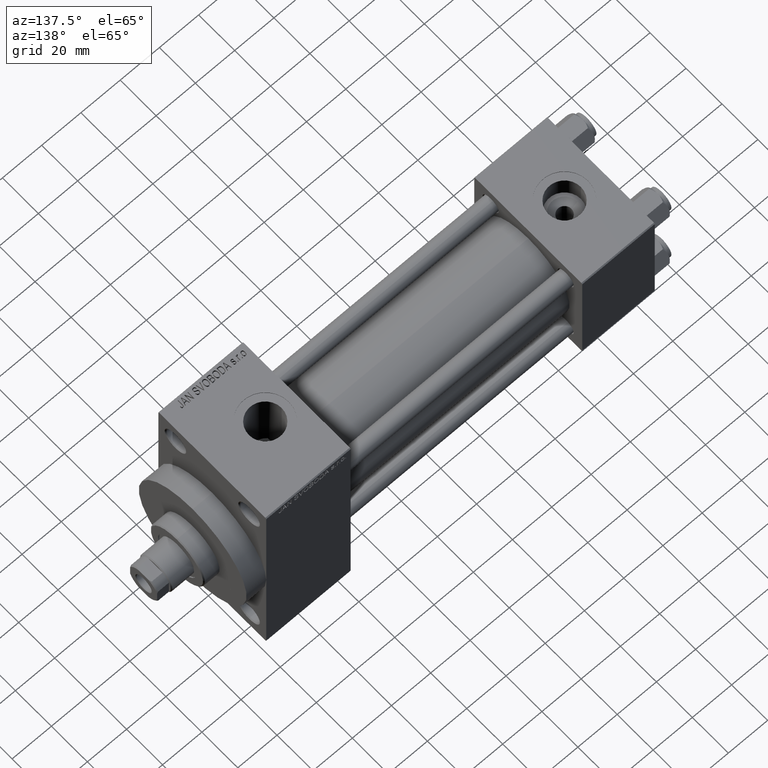
[diagram: clean part render]
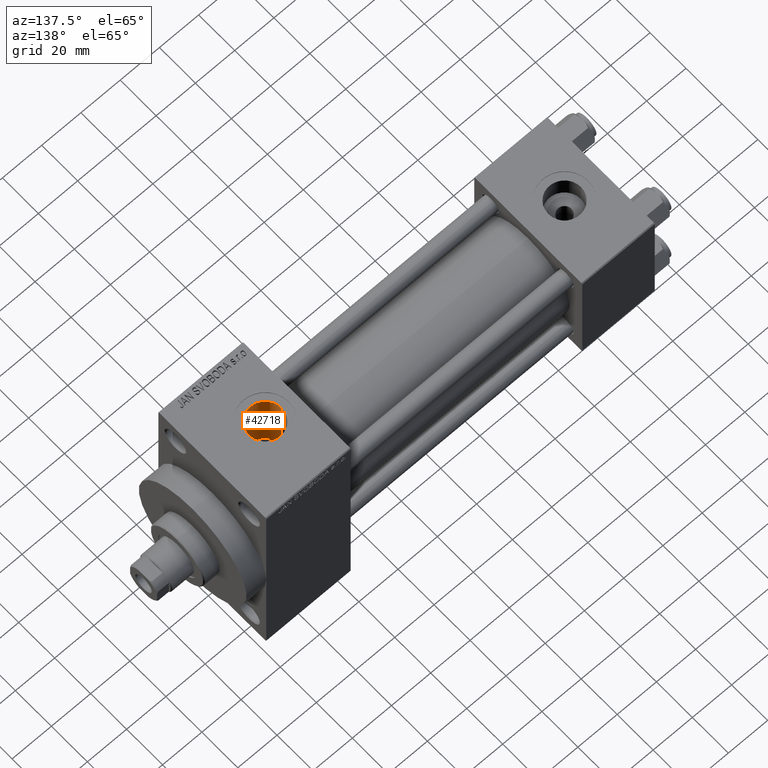
[diagram: same view with one face highlighted and labeled with its STEP entity id]
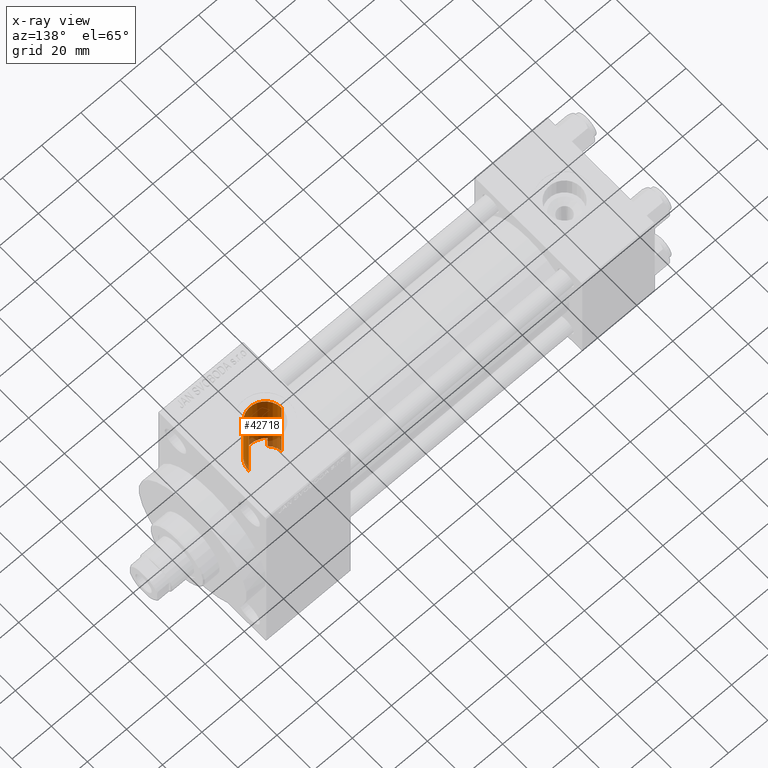
[diagram: x-ray of the same camera — body ghosted, the highlighted face saturated]
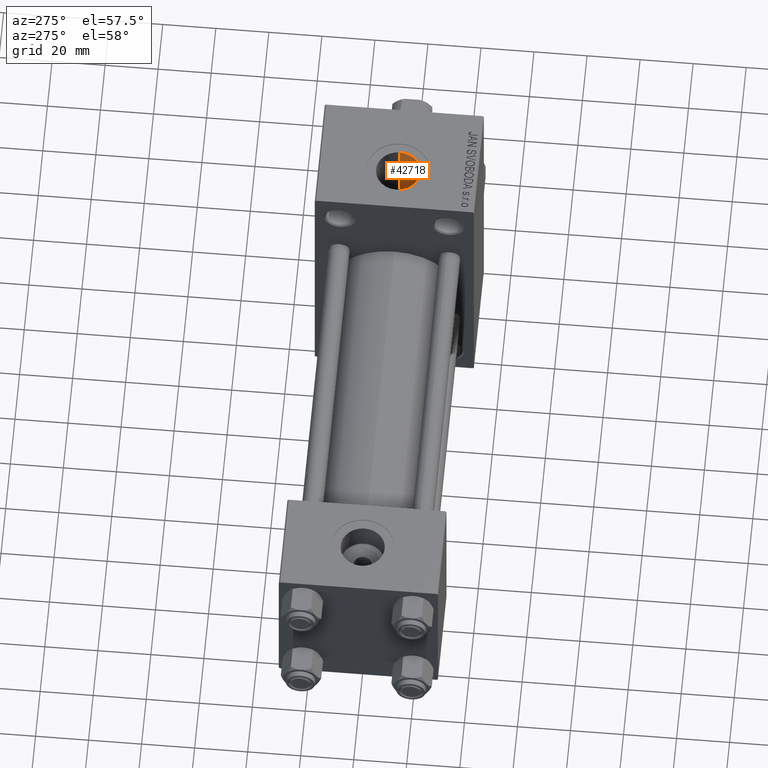
[diagram: same view with one face highlighted and labeled with its STEP entity id]
A machine part, auxiliary view. The second image highlights one B-rep face of the part: STEP entity #42718.
The next image is the same camera in x-ray: the body ghosted, the highlighted face saturated — about 10% of this face is hidden behind the body in this view.
A second angle (auxiliary view) of the same face is appended — the face is thin or edge-on in the first view.
In plain terms, the highlighted cylindrical surface (edge-blend (fillet) strip) has radius 8.33 mm, axis along (0, 0, -1).
Its self-contained STEP definition (entity closure, byte-faithful):
#407 = CARTESIAN_POINT ( 'NONE',  ( 169.3814412075936389, -8.182171164303339239, 20.95982457214781292 ) ) ;
#636 = CARTESIAN_POINT ( 'NONE',  ( 165.3158746668532331, -6.103616970294128308, 21.65812902678066720 ) ) ;
#677 = EDGE_CURVE ( 'NONE', #30303, #29091, #9025, .T. ) ;
#880 = CARTESIAN_POINT ( 'NONE',  ( 164.5787930821608995, -5.311940286469841510, 14.56268721714077508 ) ) ;
#1512 = DIRECTION ( 'NONE',  ( 1.000000000000000000, 0.000000000000000000, 0.000000000000000000 ) ) ;
#2572 = DIRECTION ( 'NONE',  ( -1.000000000000000000, 0.000000000000000000, 0.000000000000000000 ) ) ;
#3530 = CARTESIAN_POINT ( 'NONE',  ( 167.3830852825354896, -7.515492575748695003, 21.20842510955138138 ) ) ;
#3760 = CARTESIAN_POINT ( 'NONE',  ( 177.3413009043436546, -5.417501232309183123, 21.84028767977485685 ) ) ;
#3995 = CARTESIAN_POINT ( 'NONE',  ( 178.6639140372367649, -3.290714903397358615, 22.26132373405805964 ) ) ;
#4227 = CARTESIAN_POINT ( 'NONE',  ( 176.4597915280917846, -6.305104980880357424, 21.60018777995135153 ) ) ;
#4464 = CARTESIAN_POINT ( 'NONE',  ( 170.4273342078095936, -8.312974207010734418, 20.90801079915067007 ) ) ;
#4471 = CARTESIAN_POINT ( 'NONE',  ( 162.6699999999999875, -0.5084530117862658960, 15.50000000000000355 ) ) ;
#6057 = CARTESIAN_POINT ( 'NONE',  ( 170.9999999999999716, 6.302828629382400162E-15, 54.29999999999999716 ) ) ;
#6873 = DIRECTION ( 'NONE',  ( 0.000000000000000000, 0.000000000000000000, -1.000000000000000000 ) ) ;
#7094 = CARTESIAN_POINT ( 'NONE',  ( 170.9999999999999716, 6.302828629382400162E-15, 77.29999999999999716 ) ) ;
#7336 = CARTESIAN_POINT ( 'NONE',  ( 178.0799258618781948, -4.408873422199373948, 22.06660649451127298 ) ) ;
#7555 = CARTESIAN_POINT ( 'NONE',  ( 162.6699999999999875, 6.302828629382400162E-15, 54.29999999999999716 ) ) ;
#7570 = CARTESIAN_POINT ( 'NONE',  ( 179.2979863424998825, -0.8432915997222932836, 22.48808859033163543 ) ) ;
#7804 = CARTESIAN_POINT ( 'NONE',  ( 166.2981393575764457, -6.888851288155080965, 21.42070446004186834 ) ) ;
#8013 = EDGE_CURVE ( 'NONE', #30303, #20221, #28659, .T. ) ;
#8190 = ORIENTED_EDGE ( 'NONE', *, *, #677, .T. ) ;
#8255 = DIRECTION ( 'NONE',  ( -0.000000000000000000, -0.000000000000000000, 1.000000000000000000 ) ) ;
#8276 = CARTESIAN_POINT ( 'NONE',  ( 176.7709310325000160, -6.021442665975459185, 21.68155238348415281 ) ) ;
#8284 = CARTESIAN_POINT ( 'NONE',  ( 164.7400000000000375, -5.495570943951174847, 14.49305695841976593 ) ) ;
#8747 = CARTESIAN_POINT ( 'NONE',  ( 163.9948433974193449, -4.514179031432356659, 14.82972530592077121 ) ) ;
#8988 = CARTESIAN_POINT ( 'NONE',  ( 162.7161642970316393, -1.011996084777075922, 15.47504315940084041 ) ) ;
#9025 = LINE ( 'NONE', #19077, #11785 ) ;
#10649 = VERTEX_POINT ( 'NONE', #37492 ) ;
#11150 = CARTESIAN_POINT ( 'NONE',  ( 168.1560306839755299, -7.840697625789160519, 21.09036237300174577 ) ) ;
#11623 = CARTESIAN_POINT ( 'NONE',  ( 170.6388607599010072, -8.324890737869418800, 20.90325837862613412 ) ) ;
#11785 = VECTOR ( 'NONE', #33637, 1000.000000000000000 ) ;
#11859 = CARTESIAN_POINT ( 'NONE',  ( 171.0645977083229923, -8.332469890991669459, 20.90023832775083079 ) ) ;
#14520 = CARTESIAN_POINT ( 'NONE',  ( 171.2794540716098197, -8.328024065339549864, 20.90201419577501341 ) ) ;
#15207 = CARTESIAN_POINT ( 'NONE',  ( 164.7400000000000375, -5.495570943951174847, 21.81854028114620903 ) ) ;
#15361 = ORIENTED_EDGE ( 'NONE', *, *, #42027, .F. ) ;
#18107 = LINE ( 'NONE', #21918, #20370 ) ;
#18561 = CARTESIAN_POINT ( 'NONE',  ( 169.7966742200956674, -8.253438808842114227, 20.93161653585326576 ) ) ;
#18563 = CARTESIAN_POINT ( 'NONE',  ( 179.3299999999999841, 2.755455287773006291E-15, 22.50000000000000355 ) ) ;
#19027 = CARTESIAN_POINT ( 'NONE',  ( 167.0116854358693104, -7.325101535721560531, 21.27547271216653613 ) ) ;
#19077 = CARTESIAN_POINT ( 'NONE',  ( 179.3299999999999841, 7.322959413072145713E-15, 77.29999999999999716 ) ) ;
#19262 = CARTESIAN_POINT ( 'NONE',  ( 163.0493583877046717, -2.498106590616163025, 15.29935880154671501 ) ) ;
#19611 = B_SPLINE_CURVE_WITH_KNOTS ( 'NONE', 3,
 ( #8284, #880, #41458, #27127, #8747, #23318, #45269, #38118, #19262, #34532, #41698, #8988, #4471, #44575 ),
 .UNSPECIFIED., .F., .F.,
 ( 4, 2, 2, 2, 2, 2, 4 ),
 ( 0.02049932184141858502, 0.02125918471438761892, 0.02201904758735664935, 0.02353877333329467553, 0.02429863620626368861, 0.02505849907923270170, 0.02657822482517072440 ),
 .UNSPECIFIED. ) ;
#20209 = CARTESIAN_POINT ( 'NONE',  ( 164.7400000000000375, -5.495570943951174847, 14.49305695841976593 ) ) ;
#20221 = VERTEX_POINT ( 'NONE', #7555 ) ;
#20370 = VECTOR ( 'NONE', #43414, 1000.000000000000000 ) ;
#20918 = CARTESIAN_POINT ( 'NONE',  ( 179.3299999999999841, 7.322959413072145713E-15, 54.29999999999999716 ) ) ;
#21912 = CARTESIAN_POINT ( 'NONE',  ( 172.3403738839047321, -8.265299052519040401, 20.92696222447262144 ) ) ;
#21918 = CARTESIAN_POINT ( 'NONE',  ( 162.6699999999999875, 6.302828629382400162E-15, 77.29999999999999716 ) ) ;
#22148 = CARTESIAN_POINT ( 'NONE',  ( 178.8195974207913252, -2.901808889280236947, 22.31576175661179917 ) ) ;
#22379 = CARTESIAN_POINT ( 'NONE',  ( 179.3299999999999841, 2.755455287773006291E-15, 22.50000000000000355 ) ) ;
#22614 = CARTESIAN_POINT ( 'NONE',  ( 177.6031555897929763, -5.095277354536513315, 21.91828998158685593 ) ) ;
#23318 = CARTESIAN_POINT ( 'NONE',  ( 163.6117315744683935, -3.879035329860526016, 15.01323898488448272 ) ) ;
#23721 = DIRECTION ( 'NONE',  ( -0.000000000000000000, -0.000000000000000000, -1.000000000000000000 ) ) ;
#23955 = CARTESIAN_POINT ( 'NONE',  ( 164.7400000000000375, -5.495570943951174847, 21.81854028114620903 ) ) ;
#25360 = ORIENTED_EDGE ( 'NONE', *, *, #47169, .T. ) ;
#25965 = CARTESIAN_POINT ( 'NONE',  ( 179.1699291769579361, -1.679278209817677281, 22.44115179447787156 ) ) ;
#27127 = CARTESIAN_POINT ( 'NONE',  ( 164.1330257393911722, -4.721723193058623202, 14.76480843021959011 ) ) ;
#28121 = FACE_OUTER_BOUND ( 'NONE', #31838, .T. ) ;
#28659 = CIRCLE ( 'NONE', #33995, 8.330000000000003624 ) ;
#29072 = CARTESIAN_POINT ( 'NONE',  ( 165.0173696454154708, -5.811522461638612747, 21.73895961452385706 ) ) ;
#29091 = VERTEX_POINT ( 'NONE', #18563 ) ;
#30303 = VERTEX_POINT ( 'NONE', #20918 ) ;
#30445 = CARTESIAN_POINT ( 'NONE',  ( 164.7400000000000375, -5.495570943951174847, 77.29999999999999716 ) ) ;
#31838 = EDGE_LOOP ( 'NONE', ( #36772, #8190, #36696, #15361, #25360, #37769 ) ) ;
#32656 = CARTESIAN_POINT ( 'NONE',  ( 165.9550632640747949, -6.641689111475780116, 21.49922460944220859 ) ) ;
#32998 = B_SPLINE_CURVE_WITH_KNOTS ( 'NONE', 3,
 ( #22379, #40994, #7570, #25965, #44338, #22148, #3995, #40758, #7336, #22614, #3760, #8276, #4227, #43872, #44104, #40528, #21912, #14520, #11859, #11623, #4464, #18561, #407, #33119, #11150, #3530, #19027, #7804, #32656, #636, #29072, #15207 ),
 .UNSPECIFIED., .F., .F.,
 ( 4, 2, 2, 2, 2, 2, 2, 2, 2, 2, 2, 2, 2, 2, 2, 4 ),
 ( 0.02026158208243473632, 0.02152696880141128852, 0.02279235552038783724, 0.02405774223936438944, 0.02532312895834094163, 0.02658851567731749382, 0.02785390239629404602, 0.03038467583424714694, 0.03291544927220024785, 0.03354814263168850313, 0.03418083599117675841, 0.03544622271015318571, 0.03671160942912961300, 0.03797699614810604030, 0.03924238286708246759, 0.04050776958605888795 ),
 .UNSPECIFIED. ) ;
#33119 = CARTESIAN_POINT ( 'NONE',  ( 168.5613052431537824, -7.976241308370991767, 21.03905286955201248 ) ) ;
#33637 = DIRECTION ( 'NONE',  ( 0.000000000000000000, 0.000000000000000000, -1.000000000000000000 ) ) ;
#33795 = LINE ( 'NONE', #30445, #40027 ) ;
#33995 = AXIS2_PLACEMENT_3D ( 'NONE', #6057, #23721, #1512 ) ;
#34532 = CARTESIAN_POINT ( 'NONE',  ( 162.9120937043485640, -2.009728921522592859, 15.37113873265544051 ) ) ;
#35772 = CYLINDRICAL_SURFACE ( 'NONE', #36217, 8.330000000000003624 ) ;
#36217 = AXIS2_PLACEMENT_3D ( 'NONE', #7094, #6873, #2572 ) ;
#36696 = ORIENTED_EDGE ( 'NONE', *, *, #43543, .T. ) ;
#36772 = ORIENTED_EDGE ( 'NONE', *, *, #8013, .F. ) ;
#37492 = CARTESIAN_POINT ( 'NONE',  ( 162.6699999999999875, 1.898202536900960226E-15, 15.50000000000000000 ) ) ;
#37769 = ORIENTED_EDGE ( 'NONE', *, *, #47108, .F. ) ;
#38118 = CARTESIAN_POINT ( 'NONE',  ( 163.1283513953167414, -2.736452263294513632, 15.25837881643904126 ) ) ;
#40027 = VECTOR ( 'NONE', #8255, 1000.000000000000000 ) ;
#40528 = CARTESIAN_POINT ( 'NONE',  ( 173.1626272159216455, -8.088971939222103558, 20.99812971082580049 ) ) ;
#40758 = CARTESIAN_POINT ( 'NONE',  ( 178.2951098973457817, -4.042988316980862251, 22.13706359110742738 ) ) ;
#40994 = CARTESIAN_POINT ( 'NONE',  ( 179.3300000000000125, -0.4228661663087250333, 22.50000000000001066 ) ) ;
#41458 = CARTESIAN_POINT ( 'NONE',  ( 164.4250998660804726, -5.120614576075444901, 14.63125231332693410 ) ) ;
#41698 = CARTESIAN_POINT ( 'NONE',  ( 162.8541189623221044, -1.760060972621121156, 15.40178429883650324 ) ) ;
#42027 = EDGE_CURVE ( 'NONE', #47267, #44088, #33795, .T. ) ;
#42718 = ADVANCED_FACE ( 'NONE', ( #28121 ), #35772, .F. ) ;
#43414 = DIRECTION ( 'NONE',  ( 0.000000000000000000, 0.000000000000000000, -1.000000000000000000 ) ) ;
#43543 = EDGE_CURVE ( 'NONE', #29091, #44088, #32998, .T. ) ;
#43872 = CARTESIAN_POINT ( 'NONE',  ( 175.4717217021022861, -7.077548616542889803, 21.36464718587223643 ) ) ;
#44088 = VERTEX_POINT ( 'NONE', #23955 ) ;
#44104 = CARTESIAN_POINT ( 'NONE',  ( 174.7487363894115333, -7.487015359358429656, 21.22021487626641800 ) ) ;
#44338 = CARTESIAN_POINT ( 'NONE',  ( 179.0725935047802295, -2.097577831626817435, 22.40566635581345167 ) ) ;
#44575 = CARTESIAN_POINT ( 'NONE',  ( 162.6699999999999875, 1.898202536900960226E-15, 15.50000000000000000 ) ) ;
#45269 = CARTESIAN_POINT ( 'NONE',  ( 163.3948893894385321, -3.435066750549629067, 15.12202026186481518 ) ) ;
#47108 = EDGE_CURVE ( 'NONE', #20221, #10649, #18107, .T. ) ;
#47169 = EDGE_CURVE ( 'NONE', #47267, #10649, #19611, .T. ) ;
#47267 = VERTEX_POINT ( 'NONE', #20209 ) ;